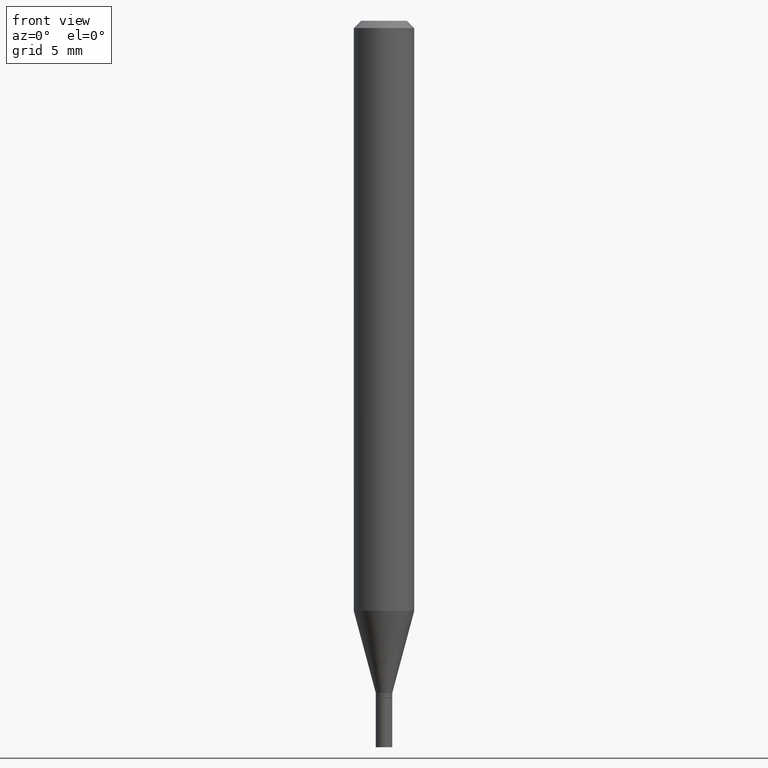
[diagram: clean part render]
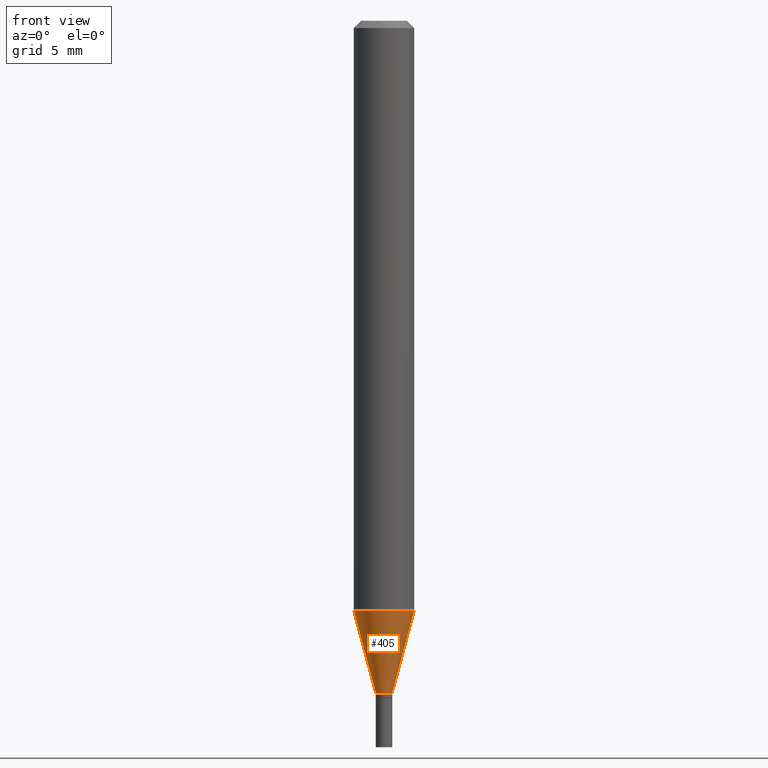
[diagram: same view with one face highlighted and labeled with its STEP entity id]
A machine part, front view. The second image highlights one B-rep face of the part: STEP entity #405.
In plain terms, the highlighted conical surface has half-angle 15 deg.
Its self-contained STEP definition (entity closure, byte-faithful):
#1 = CARTESIAN_POINT ( 'NONE',  ( -0.01699999999999992142, -4.267294085031657797E-15, -1.388000000000000123 ) ) ;
#27 = VECTOR ( 'NONE', #295, 39.37007874015747433 ) ;
#57 = CARTESIAN_POINT ( 'NONE',  ( -0.01699999999999992142, -4.725383833235069250E-15, -1.388000000000000123 ) ) ;
#67 = DIRECTION ( 'NONE',  ( -2.445468806185136597E-29, 3.491481338843145583E-15, 1.000000000000000000 ) ) ;
#102 = FACE_OUTER_BOUND ( 'NONE', #353, .T. ) ;
#124 = DIRECTION ( 'NONE',  ( 1.000000000000000000, -6.982962677686270655E-15, 0.000000000000000000 ) ) ;
#126 = CARTESIAN_POINT ( 'NONE',  ( 0.01699999999999992142, -4.964886463834951787E-15, -1.388000000000000123 ) ) ;
#140 = ORIENTED_EDGE ( 'NONE', *, *, #430, .T. ) ;
#148 = VERTEX_POINT ( 'NONE', #1 ) ;
#152 = CARTESIAN_POINT ( 'NONE',  ( 0.01699999999999992142, -4.964886463834951787E-15, -1.388000000000000123 ) ) ;
#159 = VECTOR ( 'NONE', #332, 39.37007874015747433 ) ;
#171 = LINE ( 'NONE', #57, #159 ) ;
#183 = EDGE_CURVE ( 'NONE', #214, #346, #218, .T. ) ;
#203 = CIRCLE ( 'NONE', #447, 0.06250000000000000000 ) ;
#210 = EDGE_CURVE ( 'NONE', #452, #346, #203, .T. ) ;
#214 = VERTEX_POINT ( 'NONE', #126 ) ;
#218 = LINE ( 'NONE', #152, #27 ) ;
#238 = CARTESIAN_POINT ( 'NONE',  ( 3.394310702984970054E-29, -4.846176098314285600E-15, -1.388000000000000123 ) ) ;
#241 = CONICAL_SURFACE ( 'NONE', #324, 0.01699999999999992142, 0.2617993877991500740 ) ;
#245 = EDGE_CURVE ( 'NONE', #148, #452, #171, .T. ) ;
#264 = CARTESIAN_POINT ( 'NONE',  ( 0.06250000000000000000, -4.689728714033702207E-15, -1.218191688255616301 ) ) ;
#273 = DIRECTION ( 'NONE',  ( -2.445468806185136597E-29, 3.491481338843145583E-15, 1.000000000000000000 ) ) ;
#295 = DIRECTION ( 'NONE',  ( 0.2588190451025213501, 1.565188264969621968E-15, 0.9659258262890682012 ) ) ;
#296 = CARTESIAN_POINT ( 'NONE',  ( 2.979049773583118169E-29, -4.253293546678310537E-15, -1.218191688255616301 ) ) ;
#302 = ORIENTED_EDGE ( 'NONE', *, *, #183, .T. ) ;
#313 = CARTESIAN_POINT ( 'NONE',  ( 3.394310702984970054E-29, -4.846176098314285600E-15, -1.388000000000000123 ) ) ;
#324 = AXIS2_PLACEMENT_3D ( 'NONE', #238, #67, #462 ) ;
#332 = DIRECTION ( 'NONE',  ( -0.2588190451025213501, 5.211531920934551042E-15, 0.9659258262890682012 ) ) ;
#346 = VERTEX_POINT ( 'NONE', #264 ) ;
#351 = CIRCLE ( 'NONE', #357, 0.01699999999999992142 ) ;
#353 = EDGE_LOOP ( 'NONE', ( #417, #140, #302, #446 ) ) ;
#357 = AXIS2_PLACEMENT_3D ( 'NONE', #313, #273, #455 ) ;
#371 = DIRECTION ( 'NONE',  ( -2.445468806185136597E-29, 3.491481338843145583E-15, 1.000000000000000000 ) ) ;
#377 = CARTESIAN_POINT ( 'NONE',  ( -0.06250000000000000000, -3.809204336828247921E-15, -1.218191688255616301 ) ) ;
#405 = ADVANCED_FACE ( 'NONE', ( #102 ), #241, .T. ) ;
#417 = ORIENTED_EDGE ( 'NONE', *, *, #245, .F. ) ;
#430 = EDGE_CURVE ( 'NONE', #148, #214, #351, .T. ) ;
#446 = ORIENTED_EDGE ( 'NONE', *, *, #210, .F. ) ;
#447 = AXIS2_PLACEMENT_3D ( 'NONE', #296, #371, #124 ) ;
#452 = VERTEX_POINT ( 'NONE', #377 ) ;
#455 = DIRECTION ( 'NONE',  ( 1.000000000000000000, -6.982962677686250933E-15, 0.000000000000000000 ) ) ;
#462 = DIRECTION ( 'NONE',  ( 1.000000000000000000, -6.982962677686250933E-15, 0.000000000000000000 ) ) ;